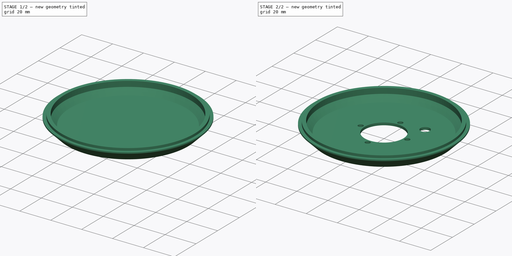
[diagram: build sequence overview — one tinted view per stage of 2, left to right]
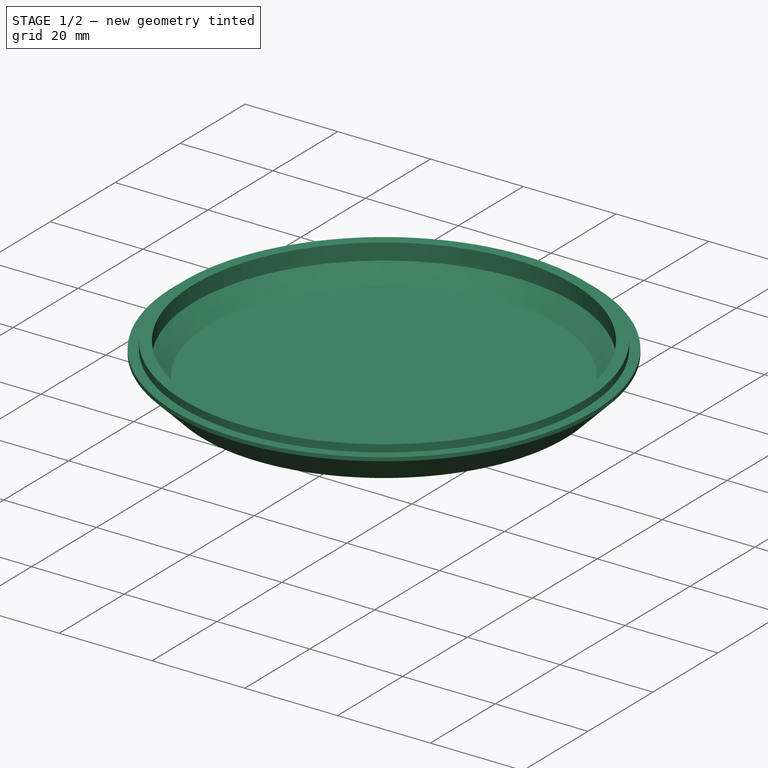
[diagram: stage 1 of 2 — iso view after this stage's code; geometry added in this stage tinted green]
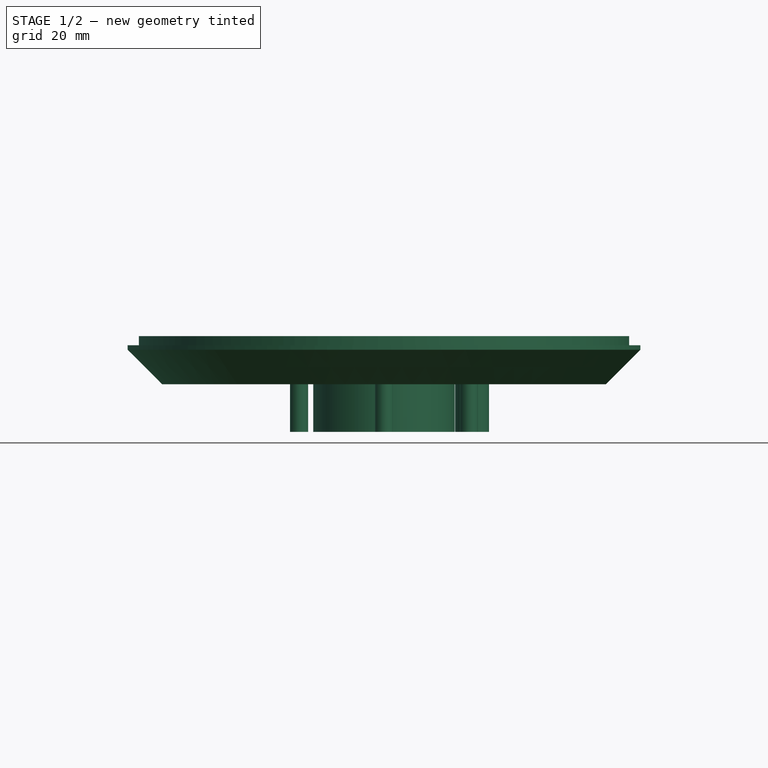
[diagram: stage 1 of 2 — front view after this stage's code; geometry added in this stage tinted green]
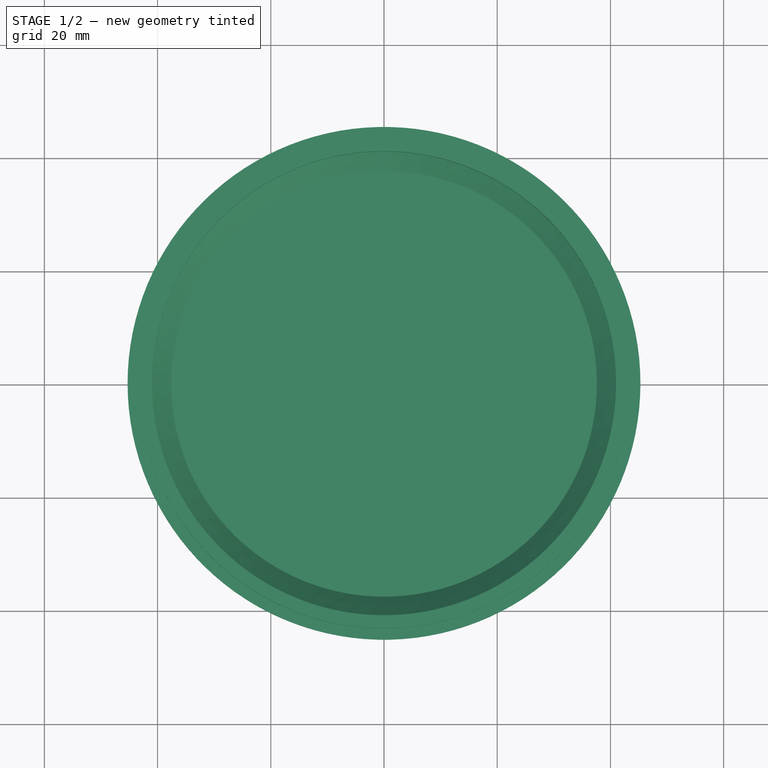
[diagram: stage 1 of 2 — top view after this stage's code; geometry added in this stage tinted green]
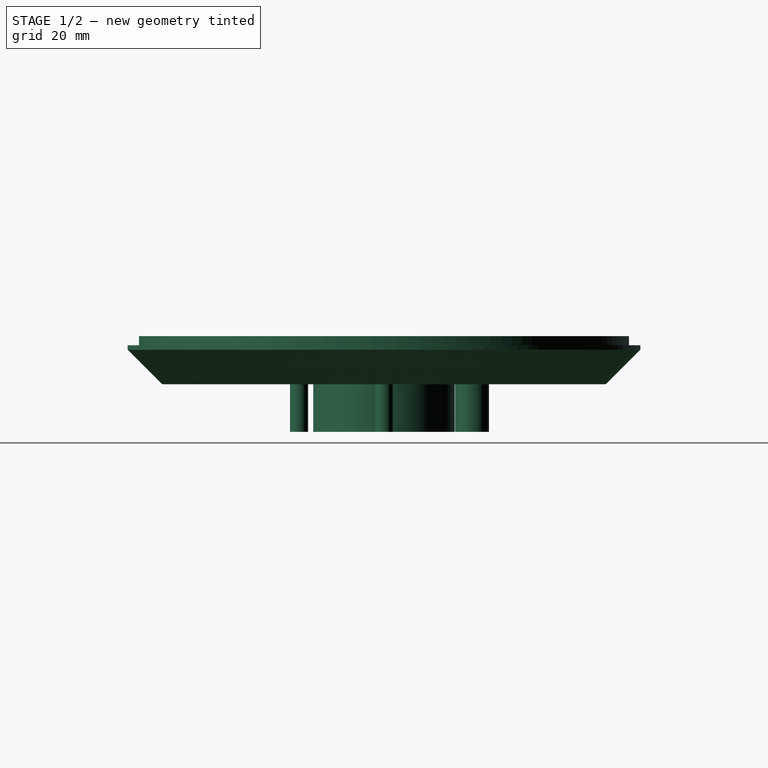
[diagram: stage 1 of 2 — right view after this stage's code; geometry added in this stage tinted green]
FCSTD DOCUMENT  (FreeCAD 0.18R4 (GitTag))
Label: base
License: All rights reserved
LicenseURL: http://en.wikipedia.org/wiki/All_rights_reserved
objects: Sketcher::SketchObject×2, Part::Revolution×1, Part::Extrusion×1, Part::Cut×1
note: 5 computed .brp shape members not serialized (recipe doc carries the construction recipe); baked Part::Feature solids carry a one-line shape summary decoded from their .brp

FEATURE [Sketcher::SketchObject] Sketch039  label="Sketch040"
  MapMode = 5
  Placement = pos=(0,0,0) rot=(1,0,0;1.5708rad)
  sketch-geometry (10):
    g0: LineSegment StartX=41 StartY=-6.5 StartZ=0 EndX=41 EndY=-3 EndZ=0
    g1: LineSegment StartX=41 StartY=-3 StartZ=0 EndX=43.3 EndY=-3 EndZ=0
    g2: LineSegment StartX=43.3 StartY=-3 StartZ=0 EndX=43.3 EndY=-4.6 EndZ=0
    g3: LineSegment StartX=39.2 StartY=-11.5 StartZ=0 EndX=0 EndY=-11.5 EndZ=0
    g4: LineSegment StartX=0 StartY=-11.5 StartZ=0 EndX=0 EndY=-9.9 EndZ=0
    g5: LineSegment StartX=0 StartY=-9.9 StartZ=0 EndX=37.6 EndY=-9.9 EndZ=0
    g6: LineSegment StartX=37.6 StartY=-9.9 StartZ=0 EndX=41 EndY=-6.5 EndZ=0
    g7: LineSegment StartX=43.3 StartY=-4.6 StartZ=0 EndX=45.3 EndY=-4.6 EndZ=0
    g8: LineSegment StartX=45.3 StartY=-4.6 StartZ=0 EndX=45.3 EndY=-5.4 EndZ=0
    g9: LineSegment StartX=45.3 StartY=-5.4 StartZ=0 EndX=39.2 EndY=-11.5 EndZ=0
  constraints (30):
    c: Vertical(g0)
    c: Coincident(g0,g1)
    c: Coincident(g1,g2)
    c: Vertical(g2)
    c: Coincident(g3,g4)
    c: Vertical(g4)
    c: Coincident(g4,g5)
    c: Horizontal(g5)
    c: Coincident(g5,g6)
    c: DistanceY(g0,g-1) = 3
    c: Horizontal(g1)
    c: DistanceX(g1,g1) = 2.3
    c: DistanceX(g-1,g0) = 41
    c: DistanceY(g2,g2) = 1.6
    c: Coincident(g6,g0)
    c: Horizontal(g3)
    c: Vertical(g-1,g4)
    c: Distance(g4) = 1.6
    c: DistanceY(g0,g0) = 3.5
    c: DistanceY(g4,g-1) = 9.9
    c: Coincident(g2,g7)
    c: Horizontal(g7)
    c: Coincident(g7,g8)
    c: Vertical(g8)
    c: Coincident(g8,g9)
    c: Coincident(g9,g3)
    c: Distance(g7) = 2
    c: Distance(g8) = 0.8
    c: Angle(g0,g6) = 2.35619
    c: Parallel(g6,g9)
FEATURE [Part::Revolution] Revolve
  Angle = 360
  Axis = (0,0,1)
  Base = (0,0,0)
  FaceMakerClass = Part::FaceMakerBullseye
  Solid = true
  Source = -> Sketch039
  Symmetric = false
FEATURE [Sketcher::SketchObject] Sketch040  label="Sketch041"
  MapMode = 5
  Placement = pos=(0,0,-9.9) rot=(0,0,1;0rad)
  sketch-geometry (7):
    g0: Circle CenterX=0 CenterY=15 CenterZ=0 NormalX=0 NormalY=0 NormalZ=1 AngleXU=0 Radius=1.6
    g1: Circle CenterX=0 CenterY=-15 CenterZ=0 NormalX=0 NormalY=0 NormalZ=1 AngleXU=0 Radius=1.6
    g2: Circle CenterX=-15 CenterY=0 CenterZ=0 NormalX=0 NormalY=0 NormalZ=1 AngleXU=0 Radius=1.6
    g3: Circle CenterX=15 CenterY=0 CenterZ=0 NormalX=0 NormalY=0 NormalZ=1 AngleXU=0 Radius=1.6
    g4: Circle CenterX=0 CenterY=0 CenterZ=0 NormalX=0 NormalY=0 NormalZ=1 AngleXU=0 Radius=12.5
    g5: Circle CenterX=15.5563 CenterY=15.5563 CenterZ=0 NormalX=0 NormalY=0 NormalZ=1 AngleXU=0 Radius=3
    g6: LineSegment [constr] StartX=0 StartY=0 StartZ=0 EndX=15.5563 EndY=15.5563 EndZ=0
  constraints (19):
    c: PointOnObject(g0,g-2)
    c: Radius(g0) = 1.6
    c: DistanceY(g-1,g0) = 15
    c: Radius(g1) = 1.6
    c: DistanceY(g1,g-1) = 15
    c: PointOnObject(g1,g-2)
    c: PointOnObject(g2,g-1)
    c: Radius(g2) = 1.6
    c: DistanceX(g2,g-1) = 15
    c: PointOnObject(g3,g-1)
    c: DistanceX(g-1,g3) = 15
    c: Radius(g3) = 1.6
    c: Coincident(g4,g-1)
    c: Radius(g4) = 12.5
    c: Radius(g5) = 3
    c: Coincident(g6,g4)
    c: Coincident(g6,g5)
    c: Distance(g6) = 22
    c: Angle(g-1,g6) = 0.785398
FEATURE [Part::Extrusion] Extrude004
  Base = -> Sketch040
  Dir = (0,0,1)
  DirMode = 2
  FaceMakerClass = Part::FaceMakerBullseye
  LengthFwd = 10
  LengthRev = 0
  Reversed = true
  Solid = true
  Symmetric = false
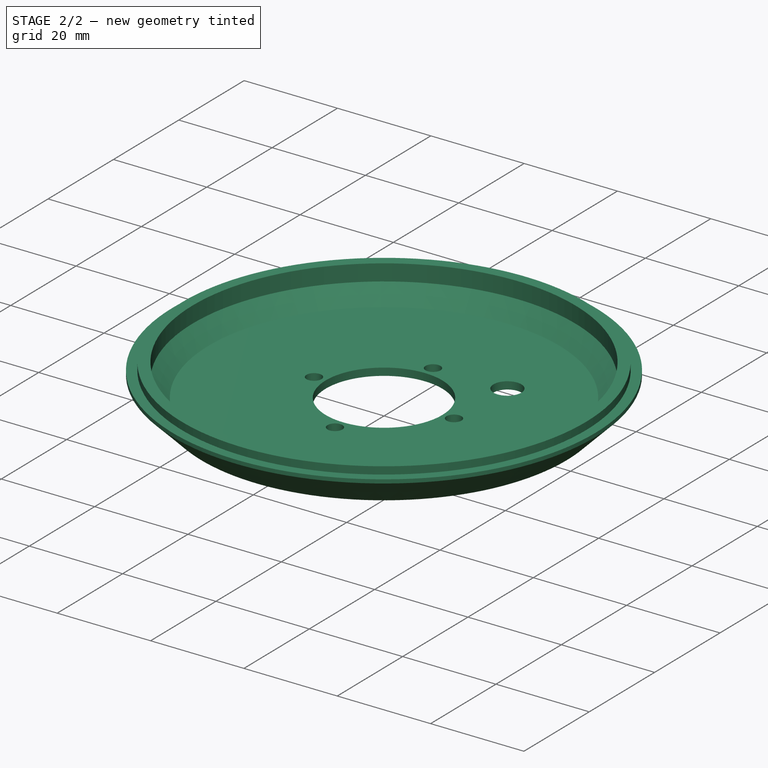
[diagram: stage 2 of 2 — iso view after this stage's code; geometry added in this stage tinted green]
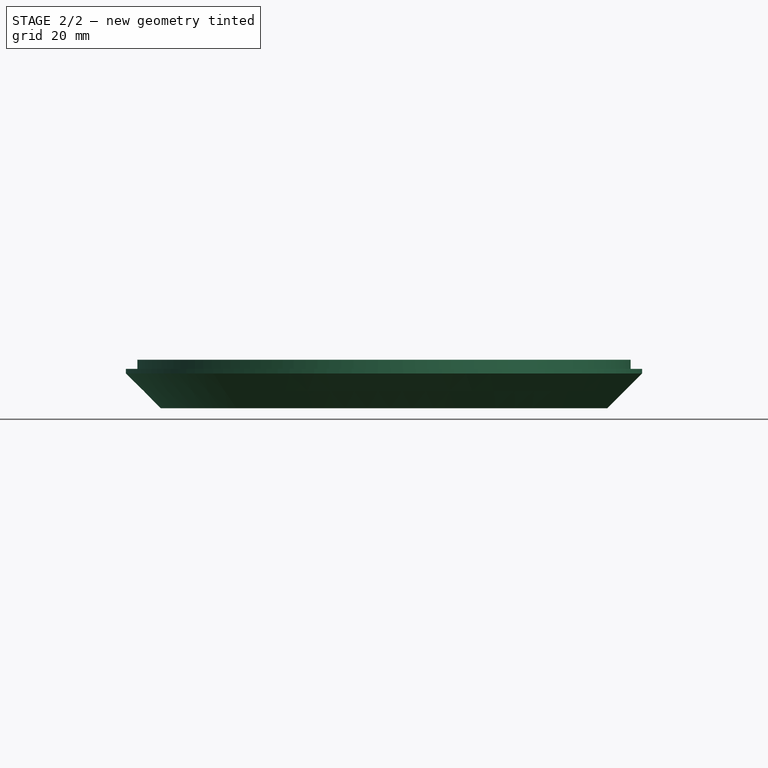
[diagram: stage 2 of 2 — front view after this stage's code; geometry added in this stage tinted green]
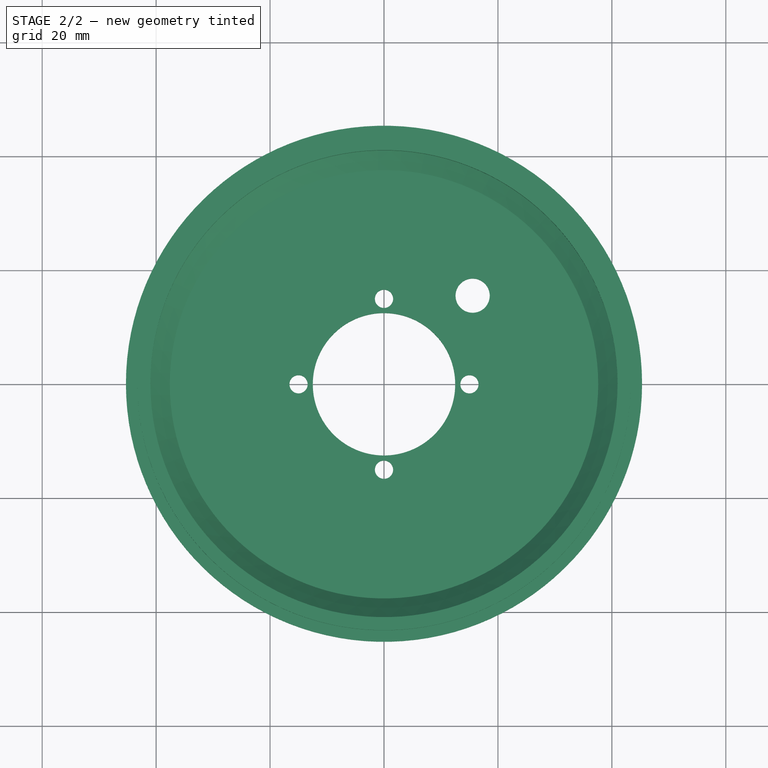
[diagram: stage 2 of 2 — top view after this stage's code; geometry added in this stage tinted green]
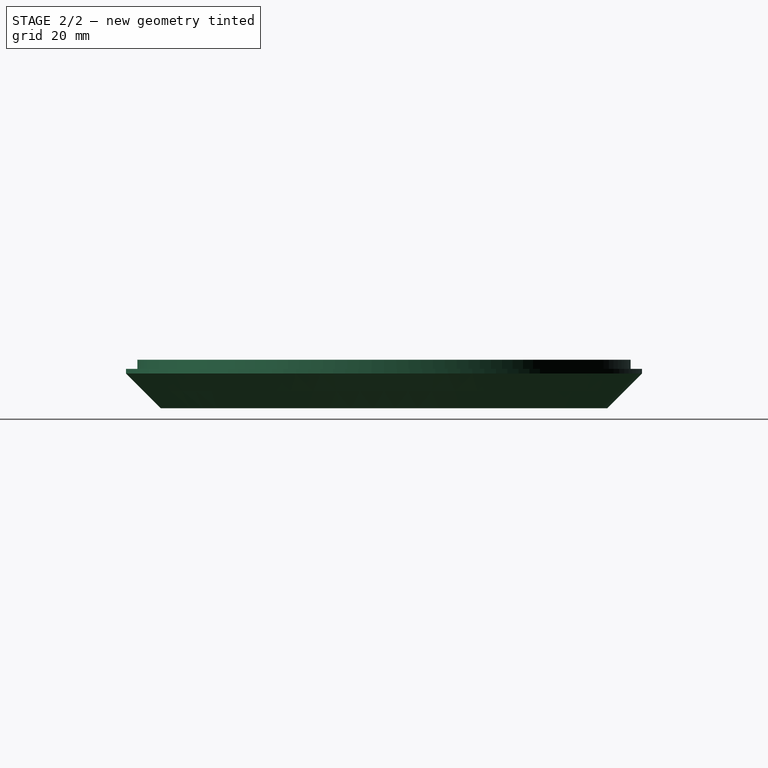
[diagram: stage 2 of 2 — right view after this stage's code; geometry added in this stage tinted green]
FEATURE [Part::Cut] Cut
  Base = -> Revolve
  Tool = -> Extrude004
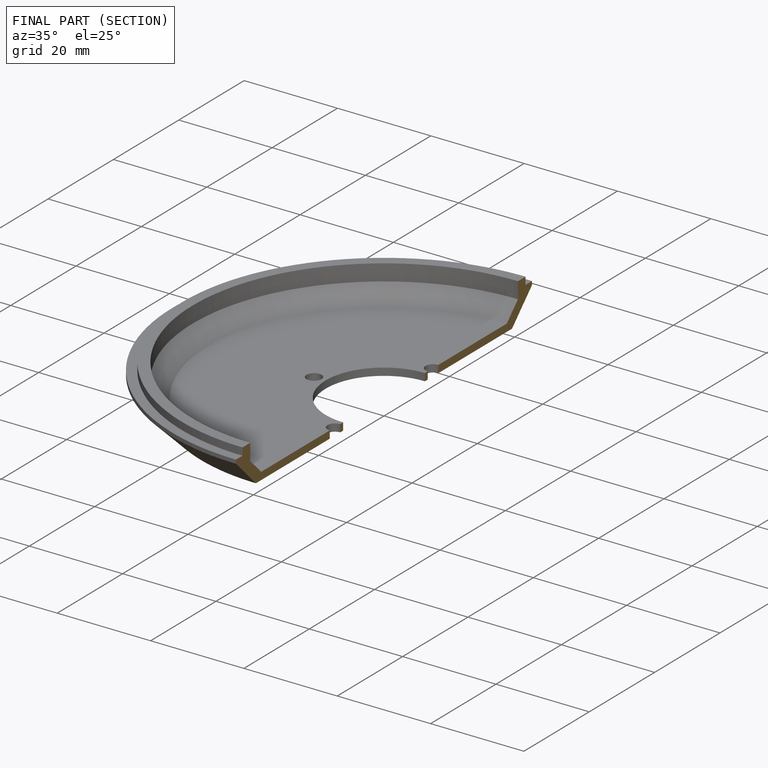
[diagram: finished part — half-section view (interior)]
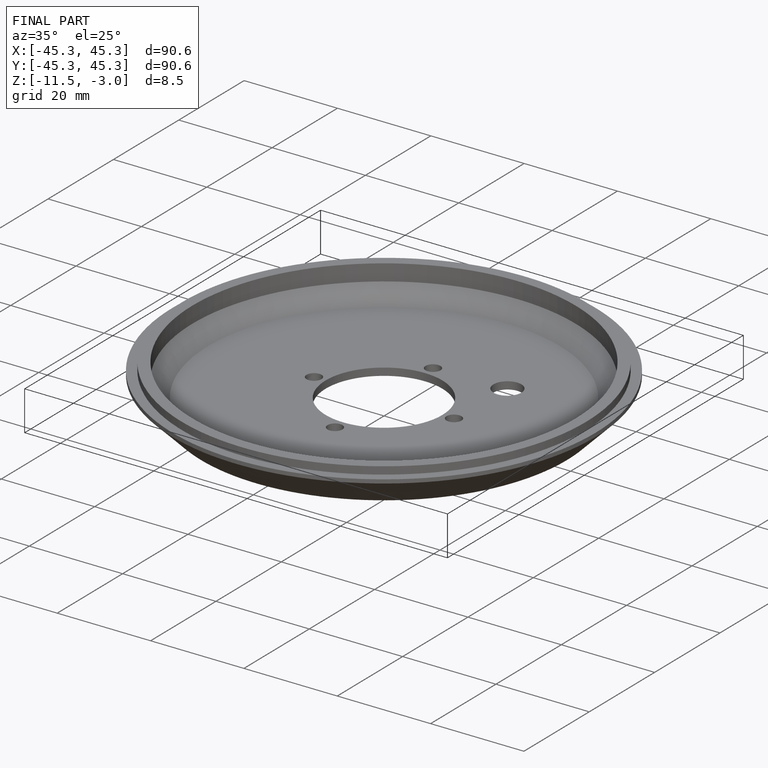
[diagram: finished part — iso view with bounding-box wireframe]
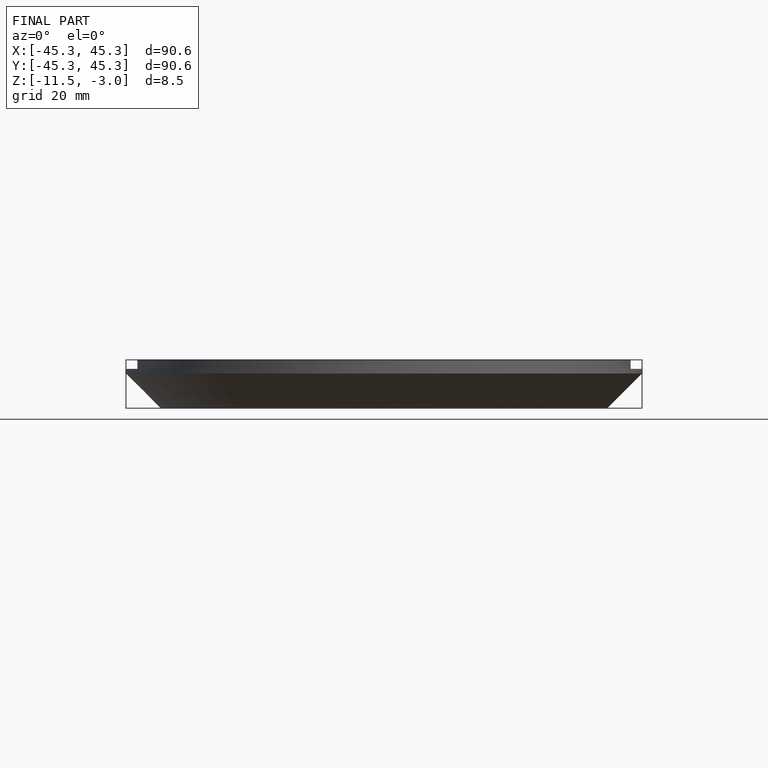
[diagram: finished part — front view with bounding-box wireframe]
